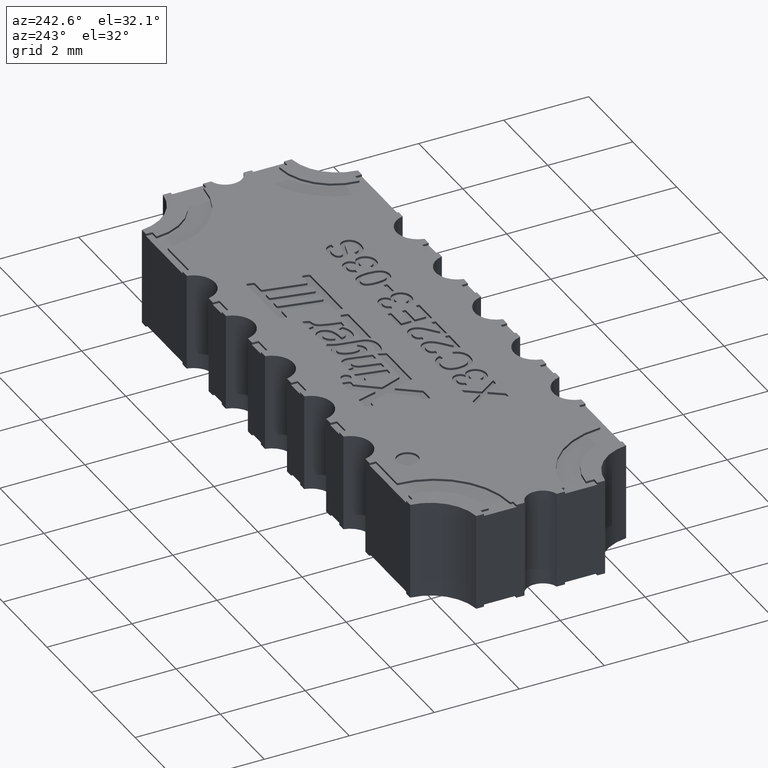
[diagram: clean part render]
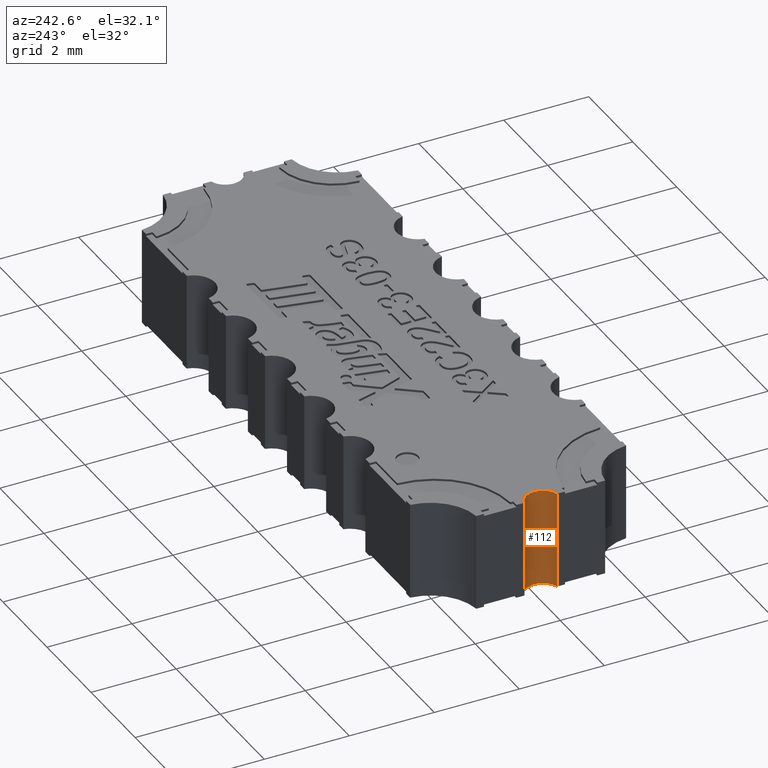
[diagram: same view with one face highlighted and labeled with its STEP entity id]
A machine part, auxiliary view. The second image highlights one B-rep face of the part: STEP entity #112.
In plain terms, the highlighted cylindrical surface (edge-blend (fillet) strip) has radius 0.3937 mm, axis along (-0, -0, -1).
Its self-contained STEP definition (entity closure, byte-faithful):
#112 = ADVANCED_FACE ( 'NONE', ( #4170 ), #11293, .F. ) ;
#562 = EDGE_CURVE ( 'NONE', #20736, #11727, #6788, .T. ) ;
#667 = DIRECTION ( 'NONE',  ( 0.000000000000000000, 0.000000000000000000, 1.000000000000000000 ) ) ;
#1120 = EDGE_CURVE ( 'NONE', #18606, #20736, #17058, .T. ) ;
#3076 = CARTESIAN_POINT ( 'NONE',  ( -0.2800000583921981590, 0.01497497913800655001, 0.002000000000000000042 ) ) ;
#4170 = FACE_OUTER_BOUND ( 'NONE', #18932, .T. ) ;
#4505 = CARTESIAN_POINT ( 'NONE',  ( -0.2800000583921977149, -0.01497497914080020247, 0.000000000000000000 ) ) ;
#4739 = CARTESIAN_POINT ( 'NONE',  ( -0.2800000583921977149, -0.01497497914080020247, 0.002000000000000000042 ) ) ;
#6788 = CIRCLE ( 'NONE', #22780, 0.01550000000000011438 ) ;
#7772 = DIRECTION ( 'NONE',  ( 1.000000000000000000, 0.000000000000000000, 0.000000000000000000 ) ) ;
#9505 = AXIS2_PLACEMENT_3D ( 'NONE', #13354, #667, #7772 ) ;
#9815 = DIRECTION ( 'NONE',  ( -0.000000000000000000, -0.000000000000000000, -1.000000000000000000 ) ) ;
#10515 = ORIENTED_EDGE ( 'NONE', *, *, #11022, .F. ) ;
#11022 = EDGE_CURVE ( 'NONE', #14523, #11727, #12191, .T. ) ;
#11293 = CYLINDRICAL_SURFACE ( 'NONE', #19784, 0.01550000000000011438 ) ;
#11561 = CARTESIAN_POINT ( 'NONE',  ( -0.2840000583640025500, -1.396885181941007179E-12, 0.000000000000000000 ) ) ;
#11727 = VERTEX_POINT ( 'NONE', #4505 ) ;
#11777 = ORIENTED_EDGE ( 'NONE', *, *, #562, .T. ) ;
#11849 = DIRECTION ( 'NONE',  ( -0.000000000000000000, -0.000000000000000000, -1.000000000000000000 ) ) ;
#12191 = LINE ( 'NONE', #4739, #20775 ) ;
#13354 = CARTESIAN_POINT ( 'NONE',  ( -0.2840000583640025500, -1.396885181941007179E-12, 0.09000000000000001055 ) ) ;
#14523 = VERTEX_POINT ( 'NONE', #16755 ) ;
#14731 = CARTESIAN_POINT ( 'NONE',  ( -0.2800000583921981590, 0.01497497913800655001, 0.000000000000000000 ) ) ;
#15922 = ORIENTED_EDGE ( 'NONE', *, *, #1120, .T. ) ;
#16755 = CARTESIAN_POINT ( 'NONE',  ( -0.2800000583921977149, -0.01497497914080020247, 0.09000000000000001055 ) ) ;
#16817 = ORIENTED_EDGE ( 'NONE', *, *, #19331, .T. ) ;
#17058 = LINE ( 'NONE', #3076, #20549 ) ;
#17404 = DIRECTION ( 'NONE',  ( -0.000000000000000000, -0.000000000000000000, -1.000000000000000000 ) ) ;
#18378 = DIRECTION ( 'NONE',  ( -1.000000000000000000, 0.000000000000000000, 0.000000000000000000 ) ) ;
#18606 = VERTEX_POINT ( 'NONE', #19309 ) ;
#18932 = EDGE_LOOP ( 'NONE', ( #11777, #10515, #16817, #15922 ) ) ;
#18989 = DIRECTION ( 'NONE',  ( 1.000000000000000000, 0.000000000000000000, 0.000000000000000000 ) ) ;
#19309 = CARTESIAN_POINT ( 'NONE',  ( -0.2800000583921981590, 0.01497497913800654827, 0.09000000000000001055 ) ) ;
#19331 = EDGE_CURVE ( 'NONE', #14523, #18606, #19539, .T. ) ;
#19539 = CIRCLE ( 'NONE', #9505, 0.01550000000000011438 ) ;
#19776 = CARTESIAN_POINT ( 'NONE',  ( -0.2840000583640025500, -1.396885181941007179E-12, 0.002000000000000000042 ) ) ;
#19784 = AXIS2_PLACEMENT_3D ( 'NONE', #19776, #21522, #18378 ) ;
#20549 = VECTOR ( 'NONE', #17404, 39.37007874015748143 ) ;
#20736 = VERTEX_POINT ( 'NONE', #14731 ) ;
#20775 = VECTOR ( 'NONE', #11849, 39.37007874015748143 ) ;
#21522 = DIRECTION ( 'NONE',  ( -0.000000000000000000, -0.000000000000000000, -1.000000000000000000 ) ) ;
#22780 = AXIS2_PLACEMENT_3D ( 'NONE', #11561, #9815, #18989 ) ;